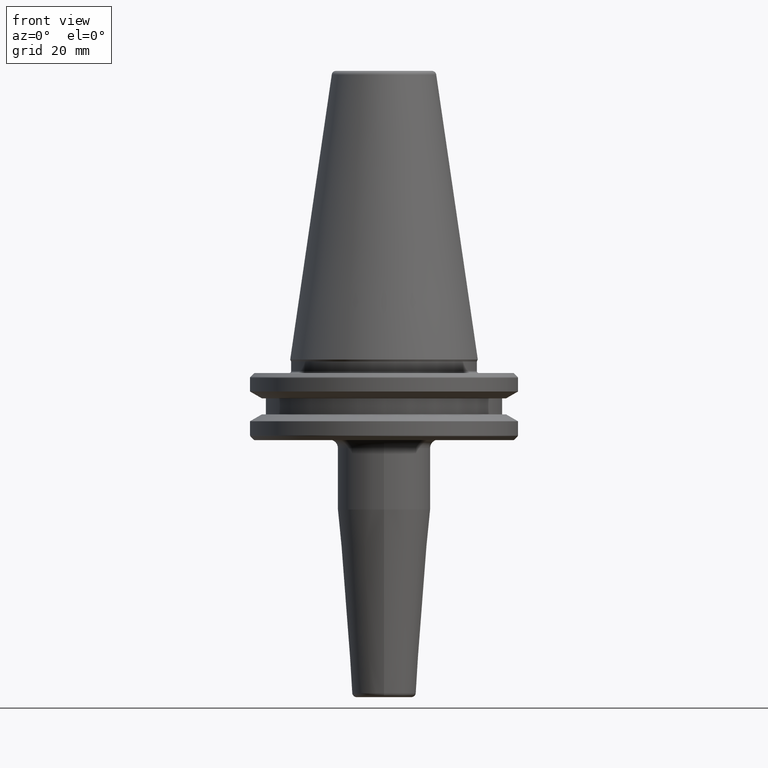
[diagram: clean part render]
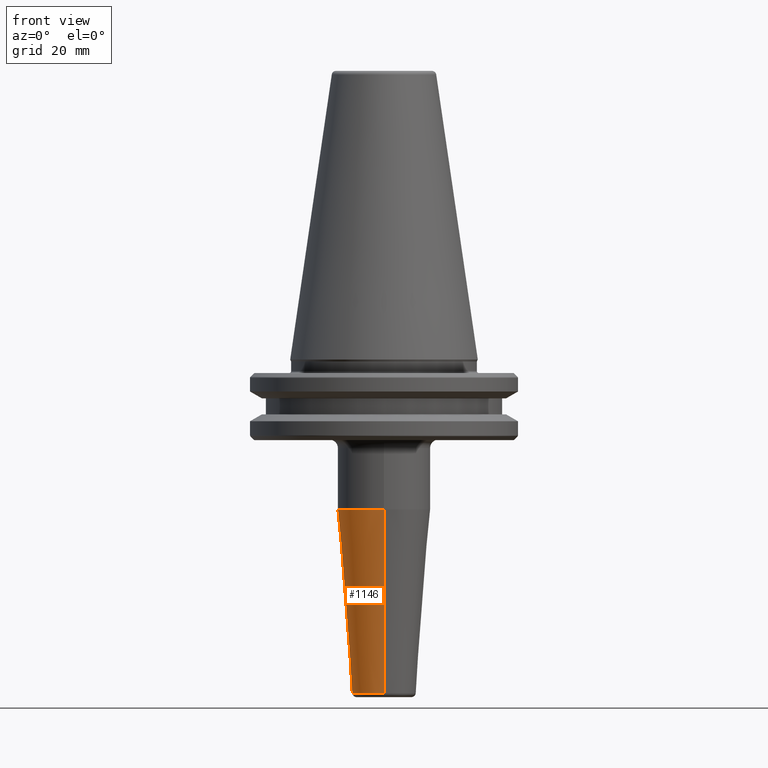
[diagram: same view with one face highlighted and labeled with its STEP entity id]
A machine part, front view. The second image highlights one B-rep face of the part: STEP entity #1146.
In plain terms, the highlighted conical surface has half-angle 4.5 deg.
Its self-contained STEP definition (entity closure, byte-faithful):
#19 = EDGE_CURVE ( 'NONE', #990, #1093, #127, .T. ) ;
#54 = EDGE_CURVE ( 'NONE', #405, #679, #1097, .T. ) ;
#61 = LINE ( 'NONE', #87, #90 ) ;
#87 = CARTESIAN_POINT ( 'NONE',  ( 9.273670758604465400E-016, 7.572526842074919900, -79.07845909572785100 ) ) ;
#90 = VECTOR ( 'NONE', #735, 1000.000000000000100 ) ;
#113 = DIRECTION ( 'NONE',  ( 0.0000000000000000000, -1.000000000000000000, 0.0000000000000000000 ) ) ;
#127 = CIRCLE ( 'NONE', #426, 7.572526842074919900 ) ;
#204 = CARTESIAN_POINT ( 'NONE',  ( 0.0000000000000000000, -2.675592333722437400E-016, -79.07845909572785100 ) ) ;
#255 = CARTESIAN_POINT ( 'NONE',  ( 9.273670758604465400E-016, -7.572526842074919900, -79.07845909572785100 ) ) ;
#290 = DIRECTION ( 'NONE',  ( 0.0000000000000000000, 1.000000000000000000, 0.0000000000000000000 ) ) ;
#295 = FACE_OUTER_BOUND ( 'NONE', #640, .T. ) ;
#345 = AXIS2_PLACEMENT_3D ( 'NONE', #489, #579, #1157 ) ;
#377 = EDGE_CURVE ( 'NONE', #1093, #679, #61, .T. ) ;
#405 = VERTEX_POINT ( 'NONE', #1033 ) ;
#414 = CARTESIAN_POINT ( 'NONE',  ( 0.0000000000000000000, -2.675592333722437400E-016, -79.07845909572785100 ) ) ;
#426 = AXIS2_PLACEMENT_3D ( 'NONE', #204, #861, #290 ) ;
#489 = CARTESIAN_POINT ( 'NONE',  ( 0.0000000000000000000, -1.258863725177652600E-014, -35.52828342338863600 ) ) ;
#494 = ORIENTED_EDGE ( 'NONE', *, *, #19, .F. ) ;
#502 = CONICAL_SURFACE ( 'NONE', #1158, 7.572526842074919900, 0.07853981633974530000 ) ;
#535 = VECTOR ( 'NONE', #1202, 1000.000000000000100 ) ;
#579 = DIRECTION ( 'NONE',  ( -0.0000000000000000000, 2.829168385244881300E-016, -1.000000000000000000 ) ) ;
#610 = CARTESIAN_POINT ( 'NONE',  ( 1.347111479062090000E-015, 11.00000000000000000, -35.52828342338863600 ) ) ;
#620 = EDGE_CURVE ( 'NONE', #990, #405, #808, .T. ) ;
#632 = ORIENTED_EDGE ( 'NONE', *, *, #377, .F. ) ;
#640 = EDGE_LOOP ( 'NONE', ( #632, #494, #693, #952 ) ) ;
#679 = VERTEX_POINT ( 'NONE', #610 ) ;
#693 = ORIENTED_EDGE ( 'NONE', *, *, #620, .T. ) ;
#735 = DIRECTION ( 'NONE',  ( 9.608468044710165900E-018, 0.07845909572784512400, 0.9969173337331278500 ) ) ;
#808 = LINE ( 'NONE', #914, #535 ) ;
#861 = DIRECTION ( 'NONE',  ( -0.0000000000000000000, 2.829168385244881300E-016, -1.000000000000000000 ) ) ;
#914 = CARTESIAN_POINT ( 'NONE',  ( 0.0000000000000000000, -7.572526842074919900, -79.07845909572785100 ) ) ;
#952 = ORIENTED_EDGE ( 'NONE', *, *, #54, .T. ) ;
#980 = DIRECTION ( 'NONE',  ( 0.0000000000000000000, -2.829168385244881300E-016, 1.000000000000000000 ) ) ;
#990 = VERTEX_POINT ( 'NONE', #255 ) ;
#1033 = CARTESIAN_POINT ( 'NONE',  ( 0.0000000000000000000, -11.00000000000002100, -35.52828342338863600 ) ) ;
#1057 = CARTESIAN_POINT ( 'NONE',  ( 0.0000000000000000000, 7.572526842074919900, -79.07845909572785100 ) ) ;
#1093 = VERTEX_POINT ( 'NONE', #1057 ) ;
#1097 = CIRCLE ( 'NONE', #345, 11.00000000000001100 ) ;
#1146 = ADVANCED_FACE ( 'NONE', ( #295 ), #502, .T. ) ;
#1157 = DIRECTION ( 'NONE',  ( 0.0000000000000000000, 1.000000000000000000, 0.0000000000000000000 ) ) ;
#1158 = AXIS2_PLACEMENT_3D ( 'NONE', #414, #980, #113 ) ;
#1202 = DIRECTION ( 'NONE',  ( 0.0000000000000000000, -0.07845909572784567900, 0.9969173337331278500 ) ) ;